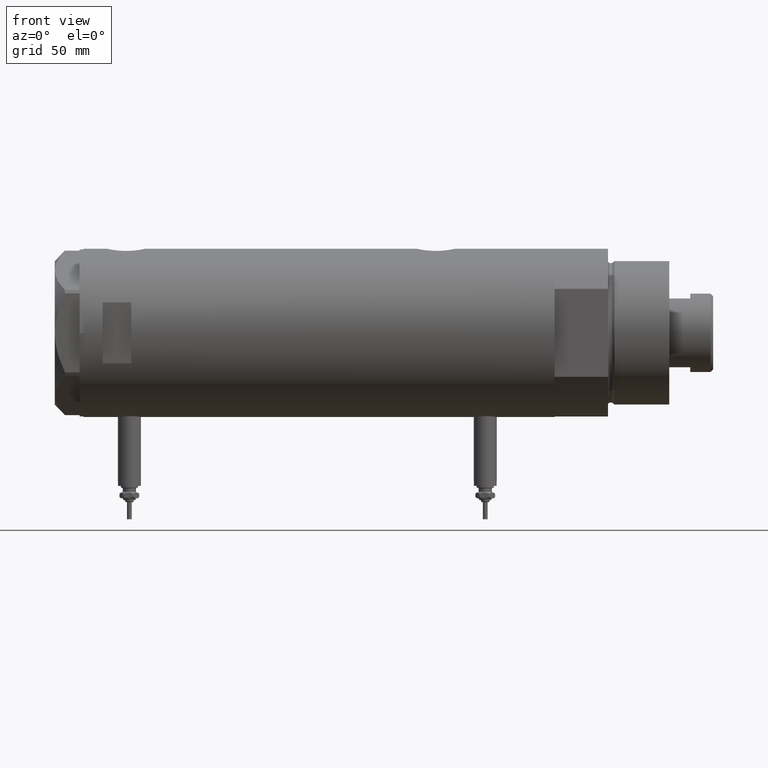
[diagram: clean part render]
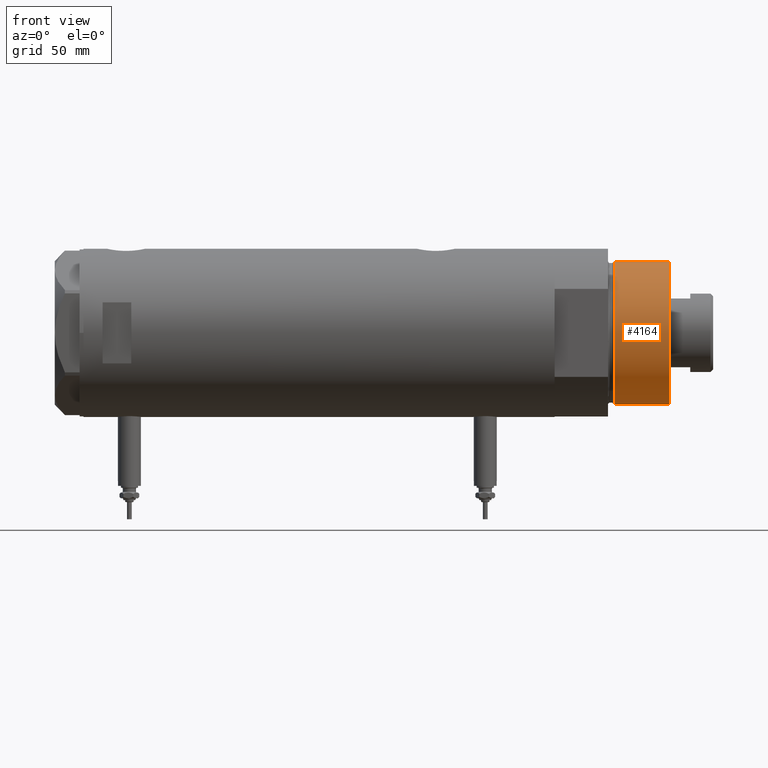
[diagram: same view with one face highlighted and labeled with its STEP entity id]
A machine part, front view. The second image highlights one B-rep face of the part: STEP entity #4164.
In plain terms, the highlighted cylindrical surface (partial cylindrical patch) has radius 37.5 mm, axis along (-1, -0, 0).
Its self-contained STEP definition (entity closure, byte-faithful):
#72 = VERTEX_POINT ( 'NONE', #2232 ) ;
#84 = VERTEX_POINT ( 'NONE', #1249 ) ;
#161 = CARTESIAN_POINT ( 'NONE',  ( 37.50000000000000711, 4.592425496802575156E-15, 31.27384048104054415 ) ) ;
#376 = CARTESIAN_POINT ( 'NONE',  ( -37.50000000000000711, 0.000000000000000000, 59.89999999999999147 ) ) ;
#623 = CARTESIAN_POINT ( 'NONE',  ( 0.000000000000000000, 0.000000000000000000, 59.89999999999999147 ) ) ;
#675 = ORIENTED_EDGE ( 'NONE', *, *, #1579, .T. ) ;
#852 = DIRECTION ( 'NONE',  ( 1.000000000000000000, 0.000000000000000000, 0.000000000000000000 ) ) ;
#981 = DIRECTION ( 'NONE',  ( -0.000000000000000000, -0.000000000000000000, -1.000000000000000000 ) ) ;
#1005 = EDGE_CURVE ( 'NONE', #72, #2792, #5412, .T. ) ;
#1249 = CARTESIAN_POINT ( 'NONE',  ( -37.50000000000000711, 0.000000000000000000, 31.27384048104054415 ) ) ;
#1287 = DIRECTION ( 'NONE',  ( -0.000000000000000000, -0.000000000000000000, -1.000000000000000000 ) ) ;
#1579 = EDGE_CURVE ( 'NONE', #84, #2792, #3126, .T. ) ;
#1948 = CYLINDRICAL_SURFACE ( 'NONE', #5360, 37.50000000000000711 ) ;
#1959 = CARTESIAN_POINT ( 'NONE',  ( 0.000000000000000000, 0.000000000000000000, 31.27384048104054415 ) ) ;
#2085 = VECTOR ( 'NONE', #981, 1000.000000000000000 ) ;
#2232 = CARTESIAN_POINT ( 'NONE',  ( 37.50000000000000711, 4.592425496802575156E-15, 59.89999999999999147 ) ) ;
#2263 = VECTOR ( 'NONE', #1287, 1000.000000000000000 ) ;
#2283 = CIRCLE ( 'NONE', #3912, 37.50000000000000711 ) ;
#2446 = ORIENTED_EDGE ( 'NONE', *, *, #1005, .F. ) ;
#2660 = DIRECTION ( 'NONE',  ( 0.000000000000000000, 0.000000000000000000, 1.000000000000000000 ) ) ;
#2678 = EDGE_CURVE ( 'NONE', #3409, #72, #2283, .T. ) ;
#2792 = VERTEX_POINT ( 'NONE', #161 ) ;
#2842 = DIRECTION ( 'NONE',  ( 1.000000000000000000, 0.000000000000000000, 0.000000000000000000 ) ) ;
#3097 = EDGE_LOOP ( 'NONE', ( #2446, #4067, #4268, #675 ) ) ;
#3126 = CIRCLE ( 'NONE', #4579, 37.50000000000000711 ) ;
#3139 = CARTESIAN_POINT ( 'NONE',  ( 0.000000000000000000, 0.000000000000000000, 59.89999999999999147 ) ) ;
#3409 = VERTEX_POINT ( 'NONE', #376 ) ;
#3436 = DIRECTION ( 'NONE',  ( -1.000000000000000000, 0.000000000000000000, 0.000000000000000000 ) ) ;
#3912 = AXIS2_PLACEMENT_3D ( 'NONE', #3139, #2660, #852 ) ;
#4042 = EDGE_CURVE ( 'NONE', #3409, #84, #4527, .T. ) ;
#4067 = ORIENTED_EDGE ( 'NONE', *, *, #2678, .F. ) ;
#4164 = ADVANCED_FACE ( 'NONE', ( #4771 ), #1948, .T. ) ;
#4172 = CARTESIAN_POINT ( 'NONE',  ( -37.50000000000000711, 0.000000000000000000, 59.89999999999999147 ) ) ;
#4242 = DIRECTION ( 'NONE',  ( -0.000000000000000000, -0.000000000000000000, 1.000000000000000000 ) ) ;
#4268 = ORIENTED_EDGE ( 'NONE', *, *, #4042, .T. ) ;
#4527 = LINE ( 'NONE', #4172, #2085 ) ;
#4579 = AXIS2_PLACEMENT_3D ( 'NONE', #1959, #4242, #2842 ) ;
#4771 = FACE_OUTER_BOUND ( 'NONE', #3097, .T. ) ;
#4896 = CARTESIAN_POINT ( 'NONE',  ( 37.50000000000000711, 4.592425496802575156E-15, 59.89999999999999147 ) ) ;
#5360 = AXIS2_PLACEMENT_3D ( 'NONE', #623, #5700, #3436 ) ;
#5412 = LINE ( 'NONE', #4896, #2263 ) ;
#5700 = DIRECTION ( 'NONE',  ( -0.000000000000000000, -0.000000000000000000, -1.000000000000000000 ) ) ;